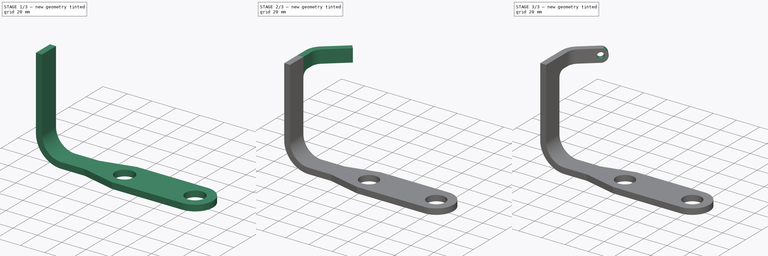
[diagram: build sequence overview — one tinted view per stage of 3, left to right]
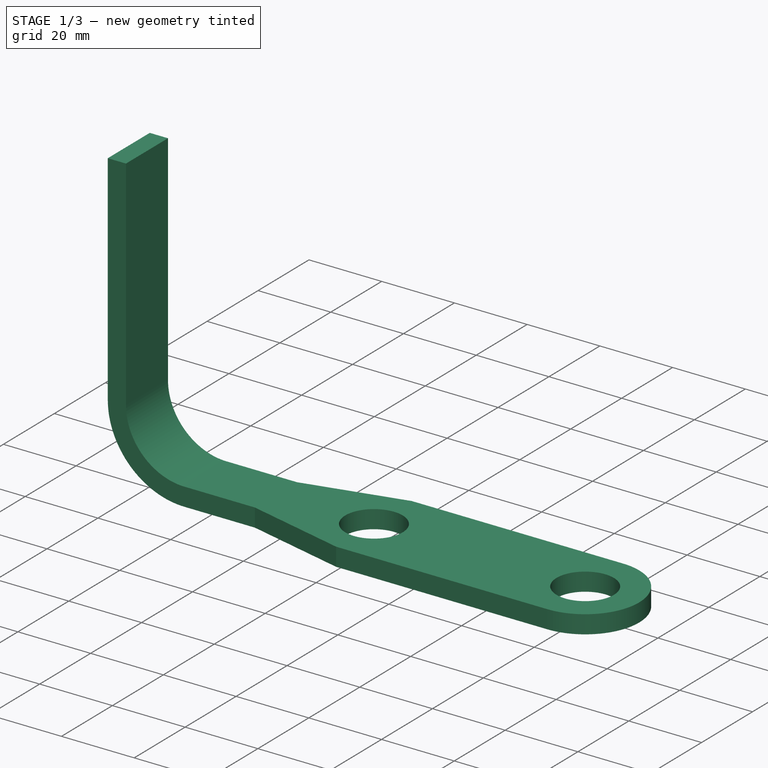
[diagram: stage 1 of 3 — iso view after this stage's code; geometry added in this stage tinted green]
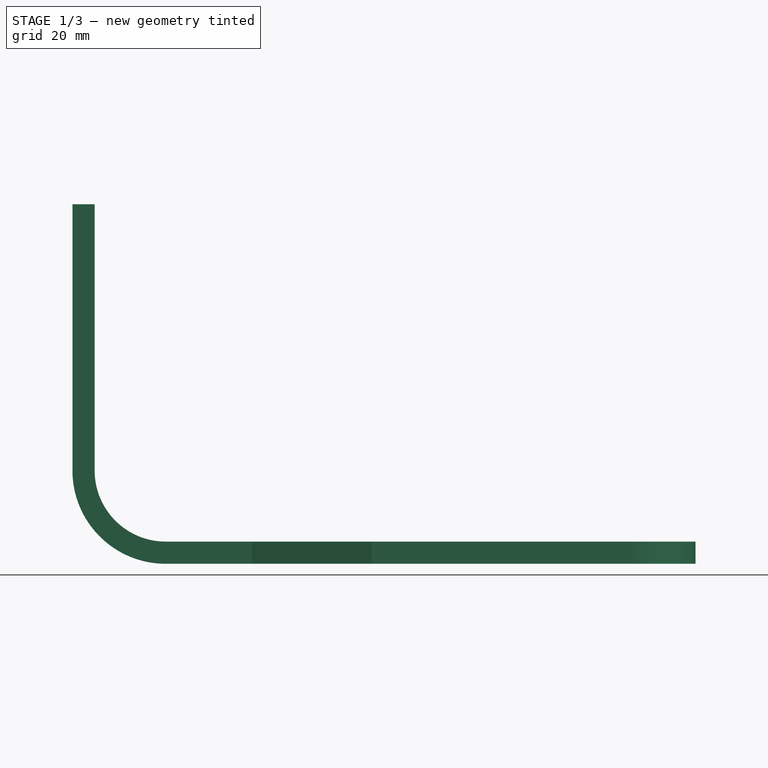
[diagram: stage 1 of 3 — front view after this stage's code; geometry added in this stage tinted green]
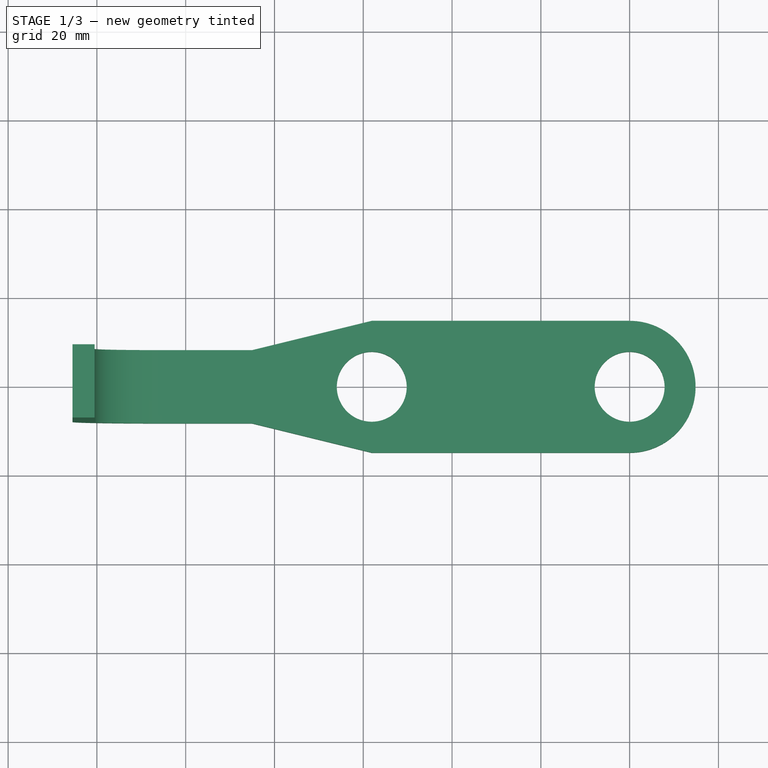
[diagram: stage 1 of 3 — top view after this stage's code; geometry added in this stage tinted green]
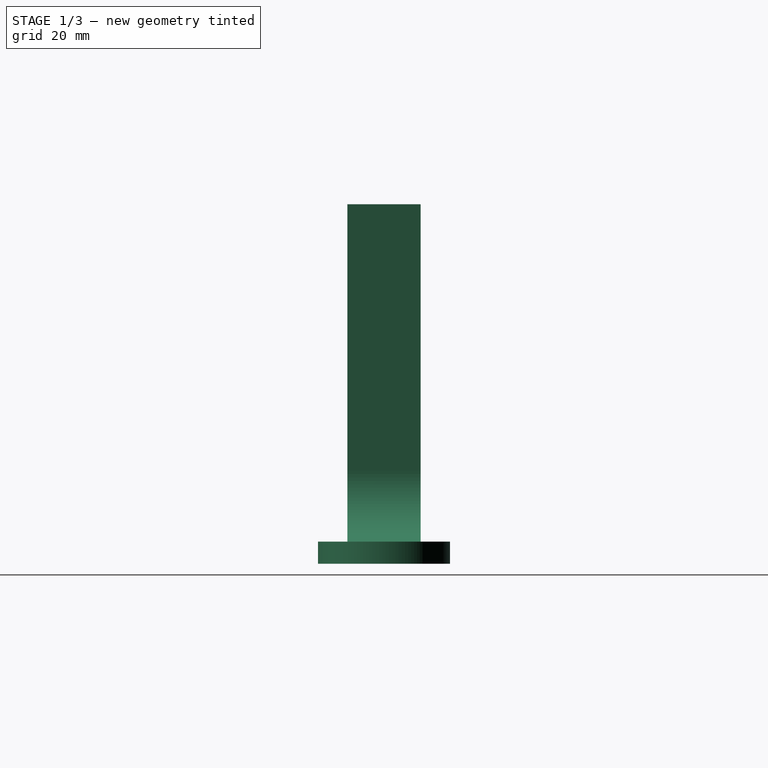
[diagram: stage 1 of 3 — right view after this stage's code; geometry added in this stage tinted green]
FCSTD DOCUMENT  (FreeCAD 0.21R33771 (Git))
Label: ex04
License: All rights reserved
LicenseURL: http://en.wikipedia.org/wiki/All_rights_reserved
objects: Sketcher::SketchObject×4, PartDesign::Pad×2, PartDesign::FeaturePython×2, PartDesign::Pocket×2, PartDesign::Fillet×1, PartDesign::Body×1
note: 17 computed .brp shape members not serialized (recipe doc carries the construction recipe); baked Part::Feature solids carry a one-line shape summary decoded from their .brp

FEATURE [Sketcher::SketchObject] Sketch
  FullyConstrained = false
  MapMode = 5
  Support = -> [XY_Plane]
  sketch-geometry (13):
    g0: ArcOfCircle CenterX=0 CenterY=0 CenterZ=0 NormalX=0 NormalY=0 NormalZ=1 AngleXU=0 Radius=14.856 StartAngle=4.71239 EndAngle=7.85398
    g1: LineSegment StartX=4.5e-15 StartY=14.856 StartZ=0 EndX=-58.0875 EndY=14.856 EndZ=0
    g2: LineSegment StartX=-58.0875 StartY=-14.856 StartZ=0 EndX=0 EndY=-14.856 EndZ=0
    g3: LineSegment StartX=-104.51 StartY=8.24556 StartZ=0 EndX=-104.51 EndY=-8.24556 EndZ=0
    g4: LineSegment StartX=-104.51 StartY=-8.24556 StartZ=0 EndX=-85.0603 EndY=-8.24556 EndZ=0
    g5: GeomPoint X=-58.0875 Y=0 Z=0
    g6: LineSegment StartX=-58.0875 StartY=14.856 StartZ=0 EndX=-85.0603 EndY=8.24556 EndZ=0
    g7: LineSegment StartX=-85.0603 StartY=-8.24556 StartZ=0 EndX=-58.0875 EndY=-14.856 EndZ=0
    g8: LineSegment StartX=-85.0603 StartY=19.7171 StartZ=0 EndX=-85.0603 EndY=-18.8852 EndZ=0
    g9: LineSegment StartX=-58.0875 StartY=17.9602 StartZ=0 EndX=-58.0875 EndY=-18.4751 EndZ=0
    g10: LineSegment StartX=-85.0603 StartY=8.24556 StartZ=0 EndX=-104.51 EndY=8.24556 EndZ=0
    g11: Circle CenterX=-58.0875 CenterY=0 CenterZ=0 NormalX=0 NormalY=0 NormalZ=1 AngleXU=0 Radius=7.87751
    g12: Circle CenterX=0 CenterY=0 CenterZ=0 NormalX=0 NormalY=0 NormalZ=1 AngleXU=0 Radius=7.87751
  constraints (18):
    c: Tangent(g0,g1) = -1.5708
    c: Coincident(g1,g6) = -1.5708
    c: Tangent(g2,g0) = -1.5708
    c: Coincident(g0,g-1)
    c: Coincident(g10,g3)
    c: Coincident(g3,g4)
    c: Horizontal(g4)
    c: Vertical(g3)
    c: Vertical(g8)
    c: PointOnObject(g7,g8)
    c: PointOnObject(g6,g8)
    c: Vertical(g9)
    c: PointOnObject(g2,g9)
    c: PointOnObject(g10,g6)
    c: Coincident(g4,g7)
    c: Coincident(g11,g5)
    c: Coincident(g12,g0)
    c: Equal(g11,g12)
FEATURE [PartDesign::Pad] Pad
  Direction = (0,0,1)
  Length = 5
  Length2 = 10
  Profile = -> Sketch
  ReferenceAxis = -> Sketch [N_Axis]
  Refine = true
  Type = 0
FEATURE [PartDesign::FeaturePython] Bend  # WARN: FeaturePython — macro-defined, semantics opaque (R4)
  AutoMiter = true
  BaseFeature = -> Pad
  BendType = 0
  LengthList = [60]
  LengthSpec = 0
  ReliefFactor = 0.7
  UseReliefFactor = false
  angle = 90
  baseObject = -> Pad [Face5]
  bendAList = [90]
  extend1 = 0
  extend2 = 0
  gap1 = 0
  gap2 = 0
  invert = false
  kfactor = 0.5
  length = 60
  maxExtendDist = 5
  minGap = 0.2
  minReliefGap = 1
  miterangle1 = 0
  miterangle2 = 0
  offset = 0
  radius = 16
  reliefType = 0
  reliefd = 1
  reliefw = 0.8
  sketchflip = false
  sketchinvert = false
  unfold = false
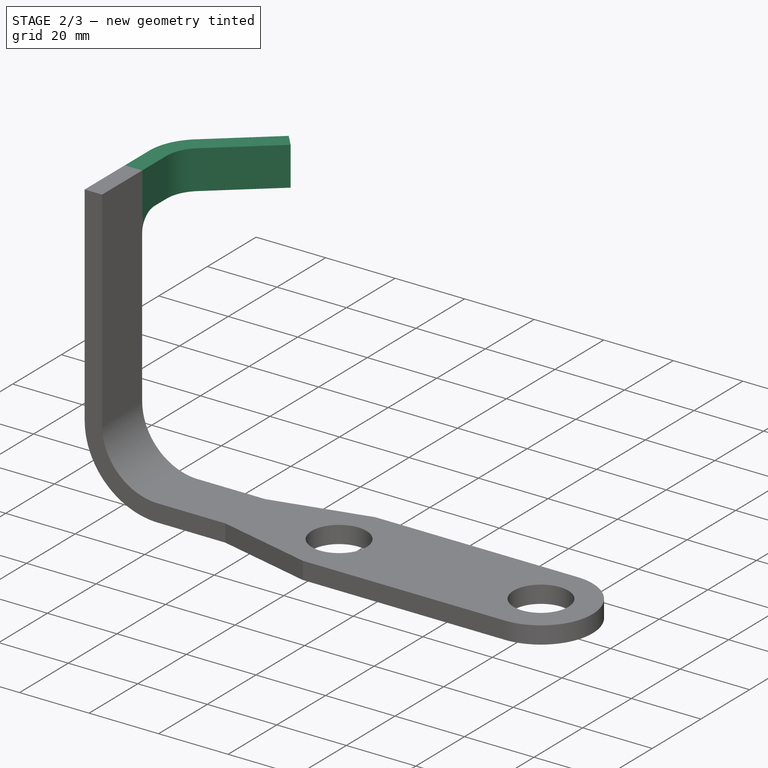
[diagram: stage 2 of 3 — iso view after this stage's code; geometry added in this stage tinted green]
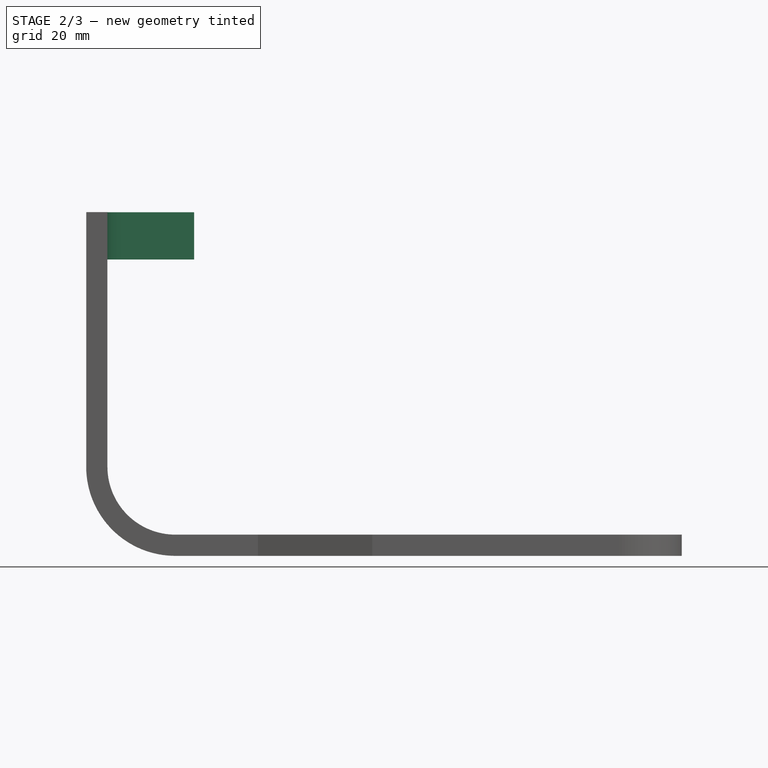
[diagram: stage 2 of 3 — front view after this stage's code; geometry added in this stage tinted green]
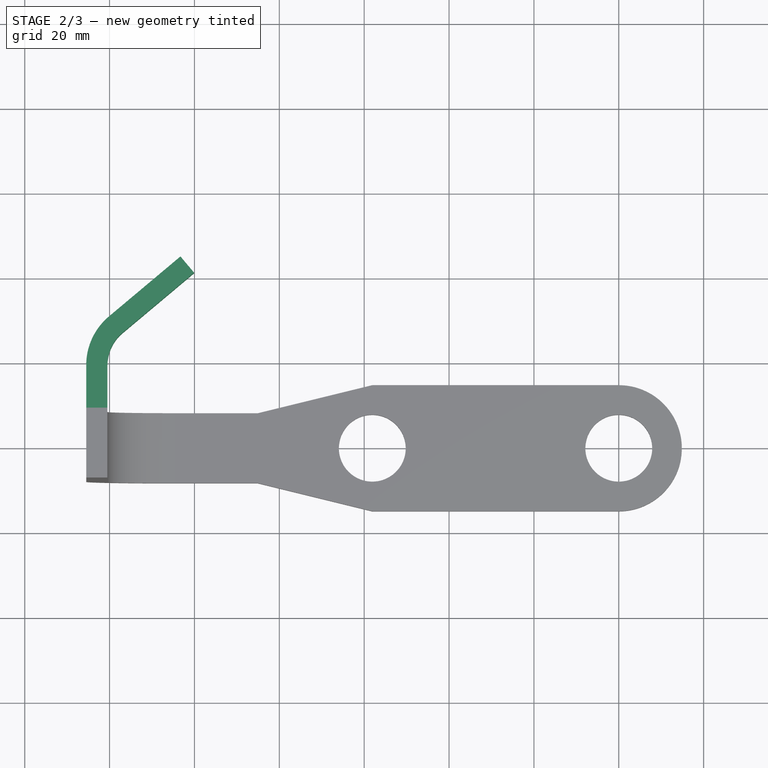
[diagram: stage 2 of 3 — top view after this stage's code; geometry added in this stage tinted green]
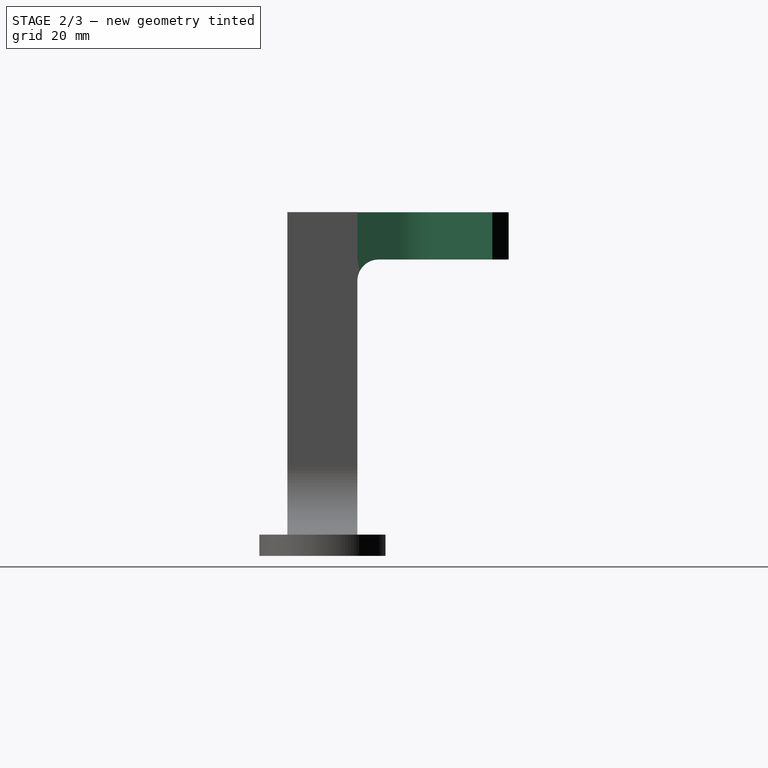
[diagram: stage 2 of 3 — right view after this stage's code; geometry added in this stage tinted green]
FEATURE [Sketcher::SketchObject] Sketch001
  FullyConstrained = false
  MapMode = 5
  Placement = pos=(8e-16,8.24556,0) rot=(0,0.707107,0.707107;3.14159rad)
  Support = -> [Bend]
  sketch-geometry (5):
    g0: LineSegment StartX=120.509 StartY=80.9719 StartZ=0 EndX=120.509 EndY=69.8313 EndZ=0
    g1: LineSegment StartX=120.509 StartY=69.8313 StartZ=0 EndX=125.509 EndY=69.8313 EndZ=0
    g2: LineSegment StartX=125.509 StartY=69.8313 StartZ=0 EndX=125.509 EndY=80.9719 EndZ=0
    g3: LineSegment StartX=125.509 StartY=80.9719 StartZ=0 EndX=120.509 EndY=80.9719 EndZ=0
    g4: GeomPoint X=123.009 Y=75.4016 Z=0
  constraints (10):
    c: Coincident(g0,g1)
    c: Coincident(g1,g2)
    c: Coincident(g2,g3)
    c: Coincident(g3,g0)
    c: Horizontal(g1)
    c: Horizontal(g3)
    c: Vertical(g0)
    c: Vertical(g2)
    c: Symmetric(g1,g0,g4)
    c: DistanceX(g0,g2) = 5
FEATURE [PartDesign::Pad] Pad001
  BaseFeature = -> Bend
  Direction = (1e-16,1,2e-16)
  Length = 10
  Length2 = 10
  Profile = -> Sketch001
  ReferenceAxis = -> Sketch001 [N_Axis]
  Refine = true
  Type = 0
FEATURE [PartDesign::Fillet] Fillet
  Base = -> Pad001 [Edge18]
  BaseFeature = -> Pad001
  Radius = 5
  Refine = true
  SupportTransform = false
  UseAllEdges = false
FEATURE [PartDesign::FeaturePython] Bend001  # WARN: FeaturePython — macro-defined, semantics opaque (R4)
  AutoMiter = true
  BaseFeature = -> Fillet
  BendType = 0
  LengthList = [22]
  LengthSpec = 0
  ReliefFactor = 0.7
  UseReliefFactor = false
  angle = -50
  baseObject = -> Fillet [Face4]
  bendAList = [-50]
  extend1 = 0
  extend2 = 0
  gap1 = 0
  gap2 = 0
  invert = false
  kfactor = 0.5
  length = 22
  maxExtendDist = 5
  minGap = 0.2
  minReliefGap = 1
  miterangle1 = 0
  miterangle2 = 0
  offset = 0
  radius = 10
  reliefType = 0
  reliefd = 1
  reliefw = 0.8
  sketchflip = false
  sketchinvert = false
  unfold = false
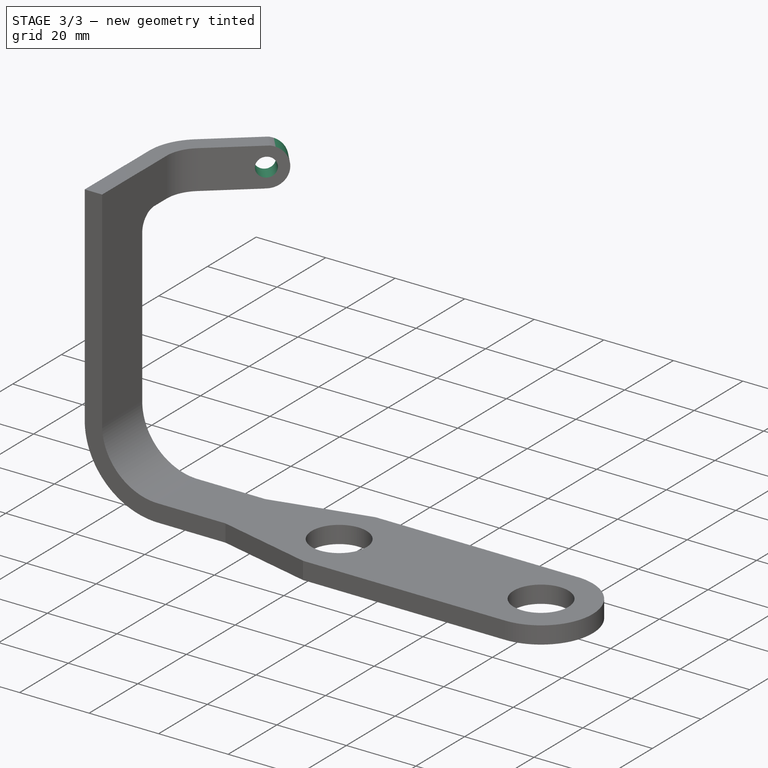
[diagram: stage 3 of 3 — iso view after this stage's code; geometry added in this stage tinted green]
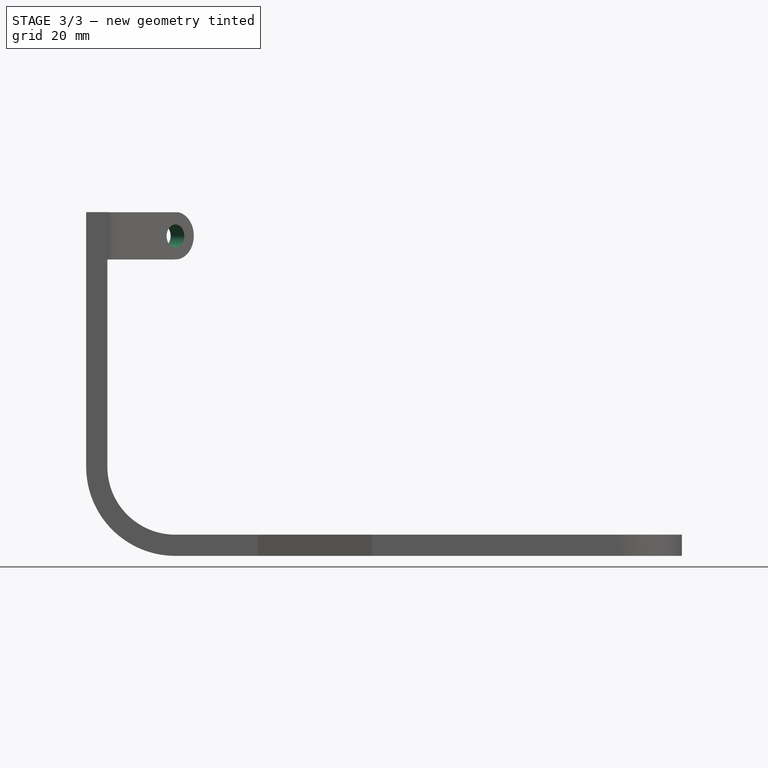
[diagram: stage 3 of 3 — front view after this stage's code; geometry added in this stage tinted green]
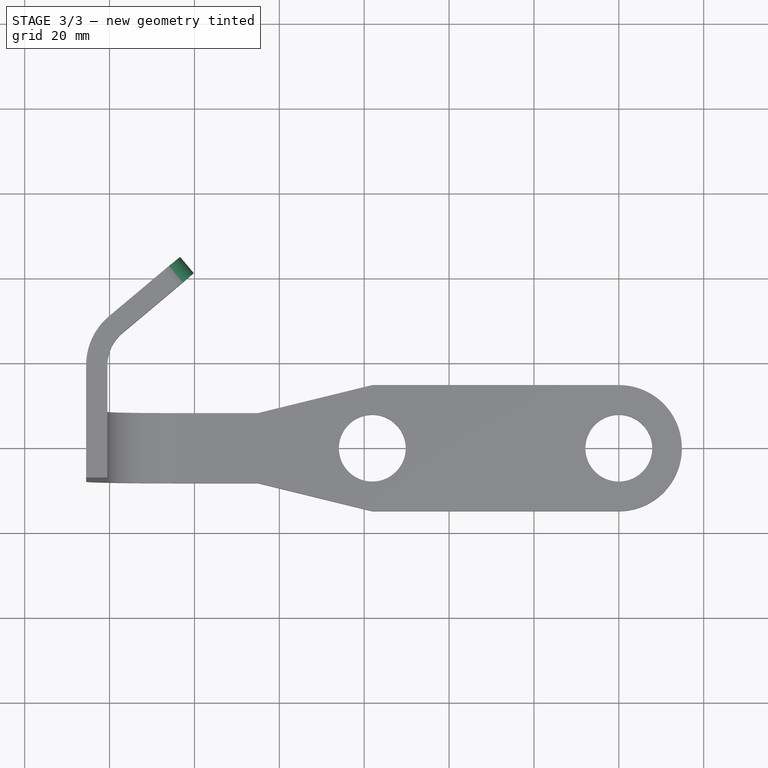
[diagram: stage 3 of 3 — top view after this stage's code; geometry added in this stage tinted green]
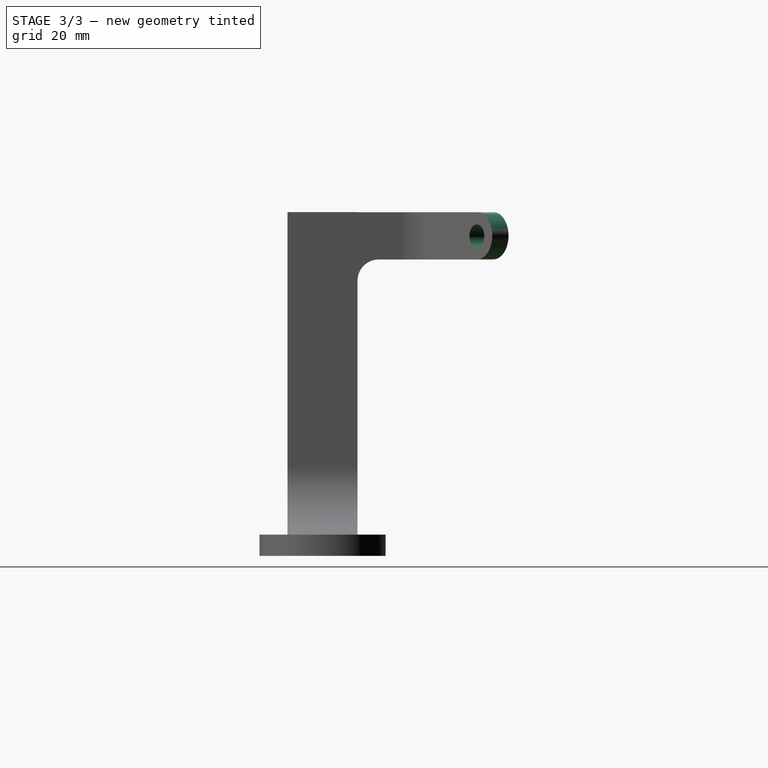
[diagram: stage 3 of 3 — right view after this stage's code; geometry added in this stage tinted green]
FEATURE [Sketcher::SketchObject] Sketch002
  FullyConstrained = false
  MapMode = 5
  Placement = pos=(-61.0718,72.7826,0) rot=(0.889126,0.323616,0.323616;1.68804rad)
  Support = -> [Bend001]
  sketch-geometry (6):
    g0: ArcOfCircle CenterX=-56.6005 CenterY=75.4407 CenterZ=0 NormalX=0 NormalY=0 NormalZ=1 AngleXU=0 Radius=5.58668 StartAngle=4.64541 EndAngle=7.8064
    g1: LineSegment StartX=-56.3348 StartY=81.0211 StartZ=0 EndX=-56.231 EndY=81.6219 EndZ=0
    g2: LineSegment StartX=-56.231 StartY=81.6219 StartZ=0 EndX=-49.042 EndY=81.6219 EndZ=0
    g3: LineSegment StartX=-49.042 StartY=81.6219 StartZ=0 EndX=-49.042 EndY=68.4869 EndZ=0
    g4: LineSegment StartX=-49.042 StartY=68.4869 StartZ=0 EndX=-56.5333 EndY=68.7892 EndZ=0
    g5: LineSegment StartX=-56.5333 StartY=68.7892 StartZ=0 EndX=-56.9744 EndY=69.8666 EndZ=0
  constraints (8):
    c: Coincident(g2,g1)
    c: Horizontal(g2)
    c: Coincident(g3,g2)
    c: Vertical(g3)
    c: Coincident(g4,g3)
    c: Coincident(g5,g4)
    c: Coincident(g0,g1)
    c: Coincident(g0,g5)
FEATURE [PartDesign::Pocket] Pocket
  BaseFeature = -> Bend001
  Direction = (-0.642788,0.766044,2e-16)
  Length = 5
  Length2 = 5
  Profile = -> Sketch002
  ReferenceAxis = -> Sketch002 [N_Axis]
  Refine = true
  Type = 0
FEATURE [Sketcher::SketchObject] Sketch003
  FullyConstrained = false
  MapMode = 5
  Placement = pos=(-61.0718,72.7826,0) rot=(0.889126,0.323616,0.323616;1.68804rad)
  Support = -> [Pocket]
  sketch-geometry (1):
    g0: Circle CenterX=-56.6595 CenterY=75.3787 CenterZ=0 NormalX=0 NormalY=0 NormalZ=1 AngleXU=0 Radius=2.71684
FEATURE [PartDesign::Pocket] Pocket001
  BaseFeature = -> Pocket
  Direction = (-0.642788,0.766044,2e-16)
  Length = 5
  Length2 = 5
  Profile = -> Sketch003
  ReferenceAxis = -> Sketch003 [N_Axis]
  Refine = true
  Type = 1
FEATURE [PartDesign::Body] Body
  Group = -> [Sketch,Pad,Bend,Sketch001,Pad001,Fillet,Bend001,Sketch002,Pocket,Sketch003,Pocket001]
  Origin = -> Origin
  Tip = -> Pocket001
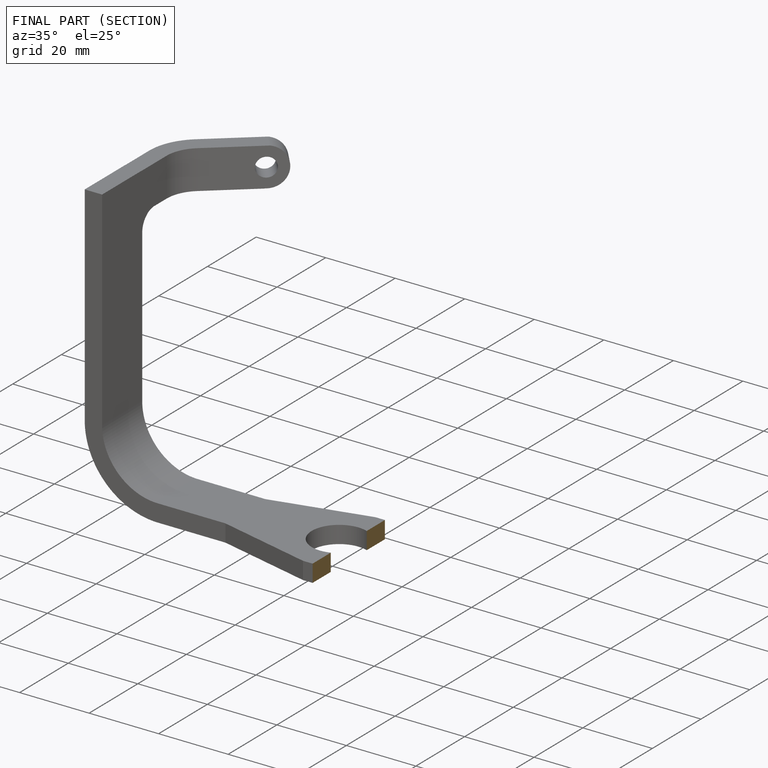
[diagram: finished part — half-section view (interior)]
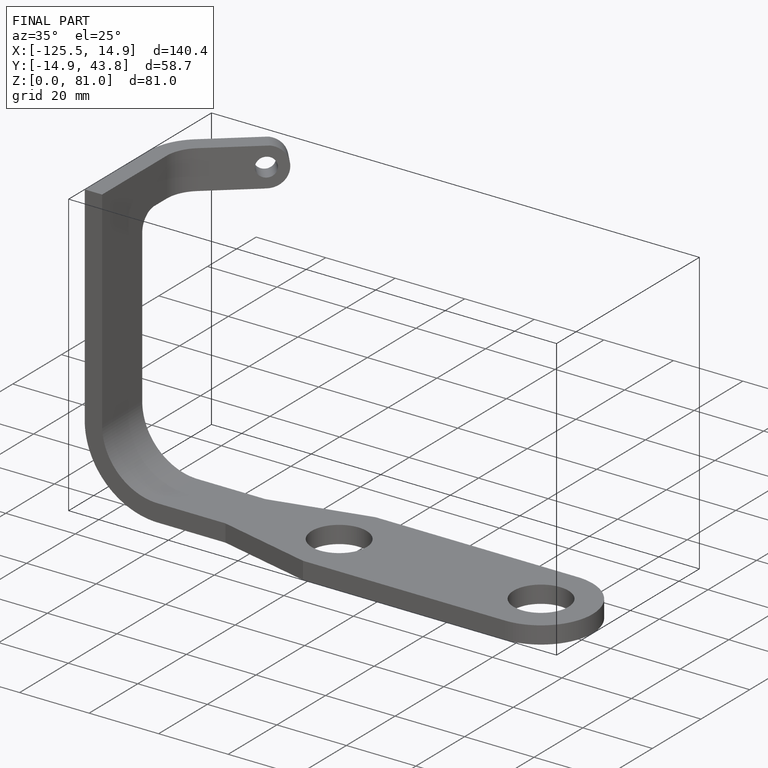
[diagram: finished part — iso view with bounding-box wireframe]
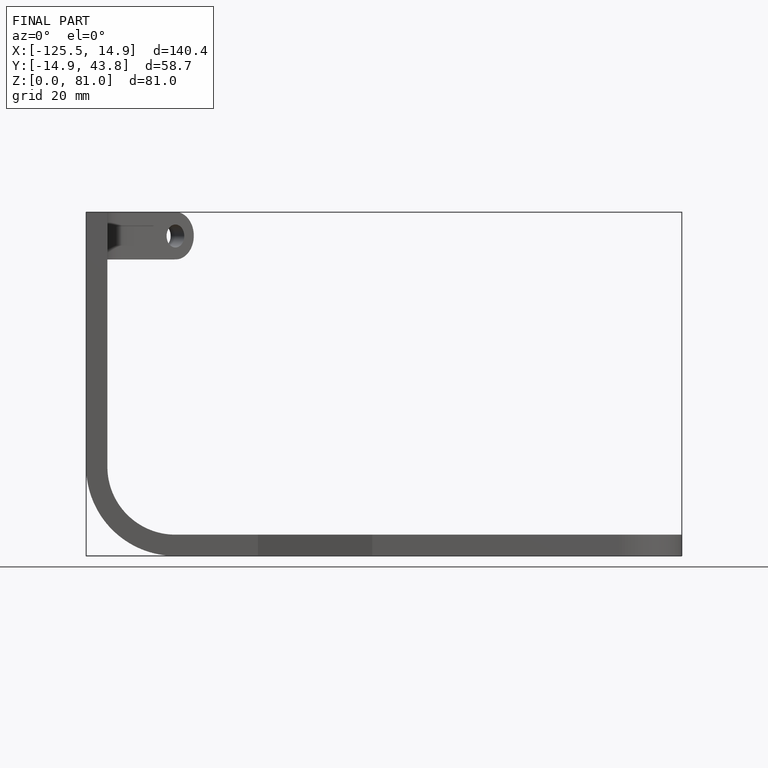
[diagram: finished part — front view with bounding-box wireframe]
